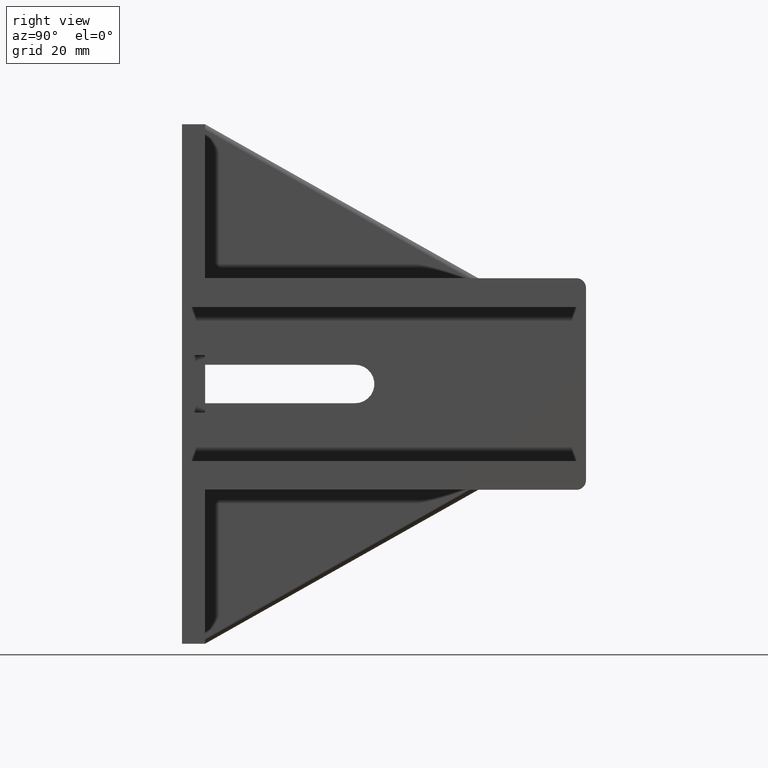
[diagram: clean part render]
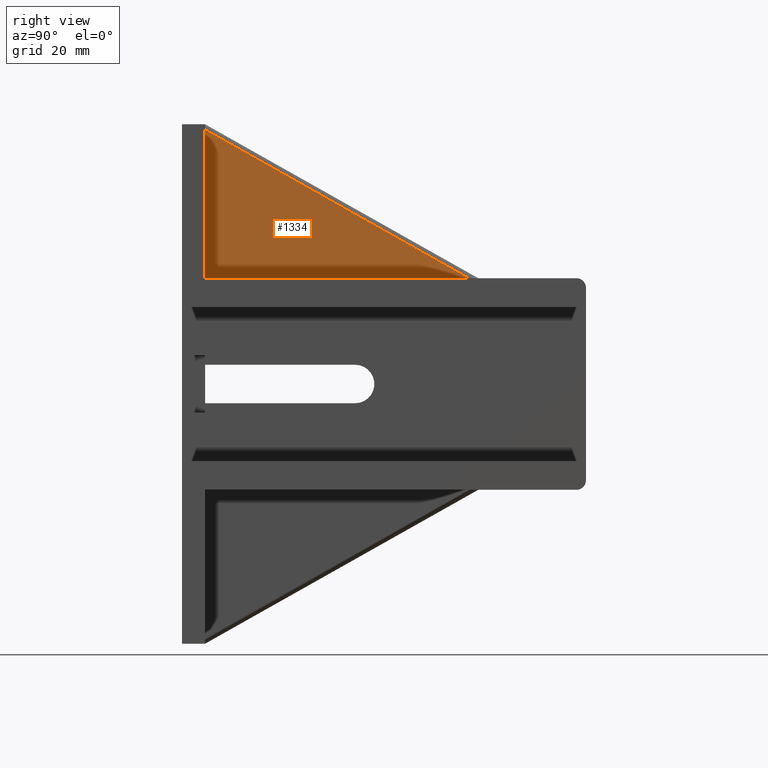
[diagram: same view with one face highlighted and labeled with its STEP entity id]
A machine part, right view. The second image highlights one B-rep face of the part: STEP entity #1334.
In plain terms, the highlighted planar face has unit normal (-1, 0, 0).
Its self-contained STEP definition (entity closure, byte-faithful):
#141=LINE('',#2096,#302);
#145=LINE('',#2108,#306);
#176=LINE('',#2173,#337);
#302=VECTOR('',#1659,38.6226648293941);
#306=VECTOR('',#1671,68.5552300721745);
#337=VECTOR('',#1744,78.6862745894892);
#386=PLANE('',#1435);
#447=FACE_OUTER_BOUND('',#522,.T.);
#522=EDGE_LOOP('',(#1127,#1128,#1129));
#680=VERTEX_POINT('',#2093);
#681=VERTEX_POINT('',#2095);
#685=VERTEX_POINT('',#2106);
#824=EDGE_CURVE('',#681,#680,#141,.T.);
#831=EDGE_CURVE('',#680,#685,#145,.T.);
#869=EDGE_CURVE('',#685,#681,#176,.T.);
#1127=ORIENTED_EDGE('',*,*,#831,.T.);
#1128=ORIENTED_EDGE('',*,*,#869,.T.);
#1129=ORIENTED_EDGE('',*,*,#824,.T.);
#1334=ADVANCED_FACE('',(#447),#386,.F.);
#1435=AXIS2_PLACEMENT_3D('',#2172,#1742,#1743);
#1659=DIRECTION('',(0.,0.,-1.));
#1671=DIRECTION('',(0.,1.,0.));
#1742=DIRECTION('center_axis',(-1.,0.,0.));
#1743=DIRECTION('ref_axis',(0.,0.,1.));
#1744=DIRECTION('',(0.,-0.871247627744877,0.490843733940776));
#2093=CARTESIAN_POINT('',(-24.5,6.,27.5));
#2095=CARTESIAN_POINT('',(-24.5,6.,66.1226648293941));
#2096=CARTESIAN_POINT('',(-24.5,6.,-67.5));
#2106=CARTESIAN_POINT('',(-24.5,74.5552300721745,27.5));
#2108=CARTESIAN_POINT('',(-24.5,105.,27.5));
#2172=CARTESIAN_POINT('Origin',(-24.5,52.5,0.));
#2173=CARTESIAN_POINT('',(-24.5,5.41098751927108,66.4545028467062));